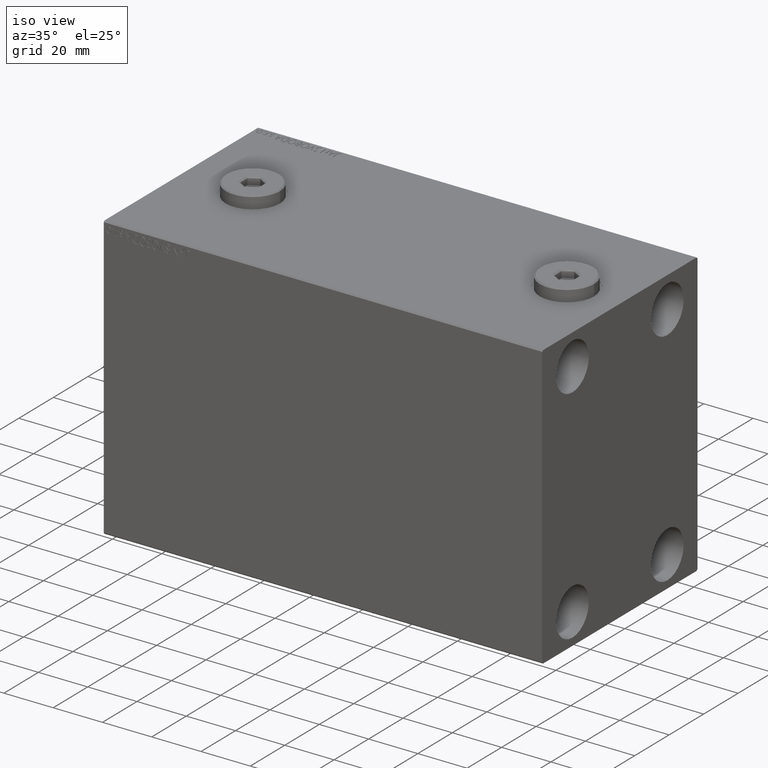
[diagram: clean part render]
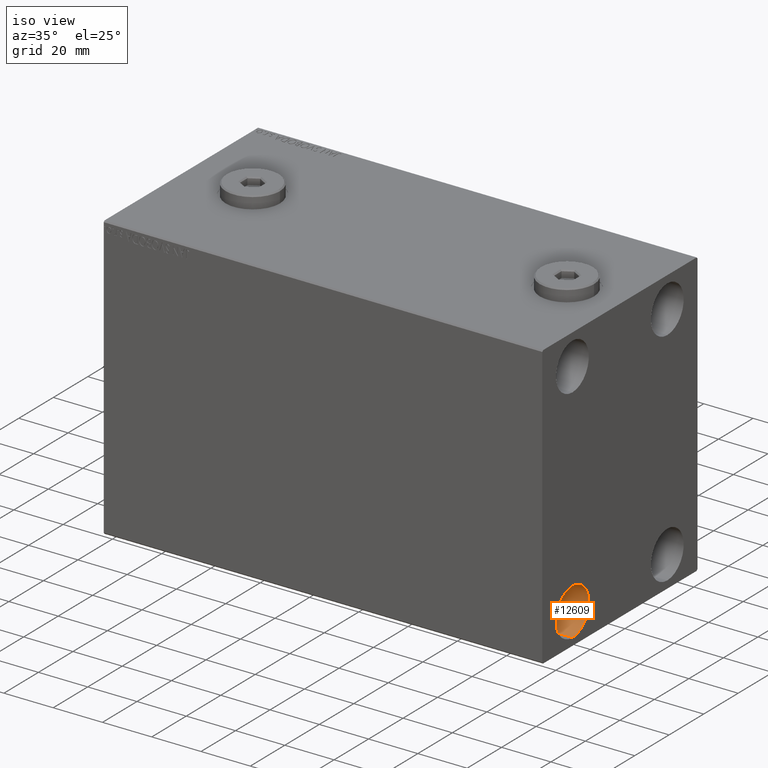
[diagram: same view with one face highlighted and labeled with its STEP entity id]
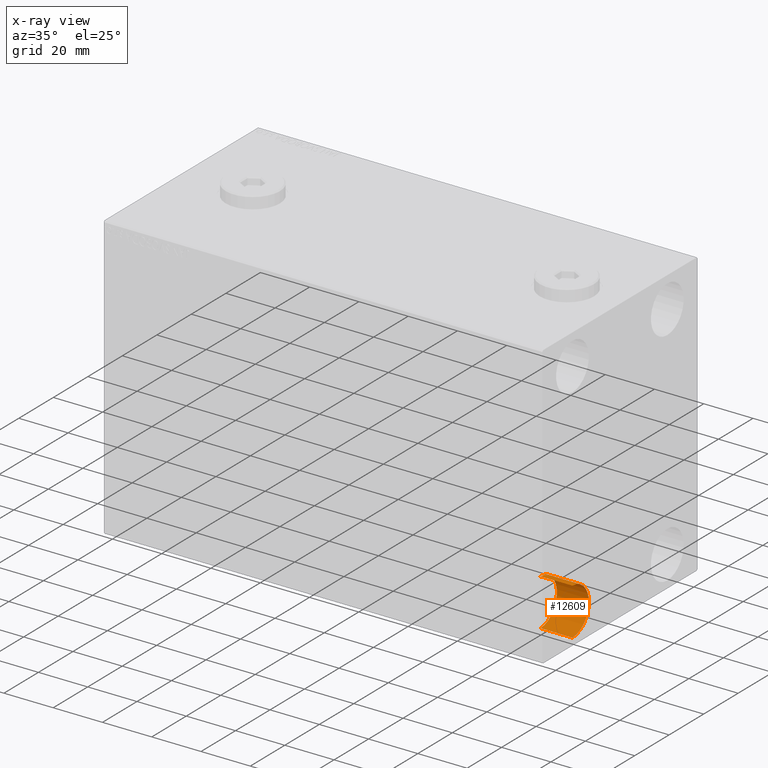
[diagram: x-ray of the same camera — body ghosted, the highlighted face saturated]
A machine part, iso view. The second image highlights one B-rep face of the part: STEP entity #12609.
The next image is the same camera in x-ray: the body ghosted, the highlighted face saturated — about 0% of this face is hidden behind the body in this view.
In plain terms, the highlighted cylindrical surface (edge-blend (fillet) strip) has radius 9.5 mm, axis along (1, 0, 0).
Its self-contained STEP definition (entity closure, byte-faithful):
#299 = ORIENTED_EDGE ( 'NONE', *, *, #2858, .F. ) ;
#2177 = CARTESIAN_POINT ( 'NONE',  ( 164.9999999999999716, -27.50000000000000000, -35.49999999999998579 ) ) ;
#2459 = CARTESIAN_POINT ( 'NONE',  ( 178.0000000000000000, -27.50000000000000000, -54.49999999999998579 ) ) ;
#2858 = EDGE_CURVE ( 'NONE', #34125, #22466, #41378, .T. ) ;
#3218 = DIRECTION ( 'NONE',  ( 1.000000000000000000, -0.000000000000000000, -0.000000000000000000 ) ) ;
#5122 = CIRCLE ( 'NONE', #39551, 9.500000000000001776 ) ;
#5836 = CARTESIAN_POINT ( 'NONE',  ( 164.9999999999999716, -27.50000000000000000, -54.49999999999998579 ) ) ;
#6873 = VECTOR ( 'NONE', #35252, 1000.000000000000000 ) ;
#7261 = CARTESIAN_POINT ( 'NONE',  ( 164.9999999999999716, -27.50000000000000000, -54.49999999999998579 ) ) ;
#8541 = VERTEX_POINT ( 'NONE', #2177 ) ;
#9485 = DIRECTION ( 'NONE',  ( 0.000000000000000000, 0.000000000000000000, 1.000000000000000000 ) ) ;
#9492 = ORIENTED_EDGE ( 'NONE', *, *, #29332, .T. ) ;
#10084 = LINE ( 'NONE', #24541, #34249 ) ;
#12040 = CARTESIAN_POINT ( 'NONE',  ( 164.9999999999999716, -27.50000000000000000, -44.99999999999998579 ) ) ;
#12609 = ADVANCED_FACE ( 'NONE', ( #29498 ), #43451, .F. ) ;
#12708 = DIRECTION ( 'NONE',  ( 1.000000000000000000, -0.000000000000000000, -0.000000000000000000 ) ) ;
#14416 = EDGE_CURVE ( 'NONE', #8541, #34125, #10084, .T. ) ;
#16350 = CARTESIAN_POINT ( 'NONE',  ( 178.0000000000000000, -27.50000000000000000, -44.99999999999998579 ) ) ;
#16940 = VERTEX_POINT ( 'NONE', #5836 ) ;
#19148 = DIRECTION ( 'NONE',  ( 0.000000000000000000, 0.000000000000000000, -1.000000000000000000 ) ) ;
#21611 = AXIS2_PLACEMENT_3D ( 'NONE', #16350, #23471, #9485 ) ;
#22364 = CARTESIAN_POINT ( 'NONE',  ( 164.9999999999999716, -27.50000000000000000, -44.99999999999998579 ) ) ;
#22466 = VERTEX_POINT ( 'NONE', #2459 ) ;
#23471 = DIRECTION ( 'NONE',  ( -1.000000000000000000, -0.000000000000000000, -0.000000000000000000 ) ) ;
#24541 = CARTESIAN_POINT ( 'NONE',  ( 164.9999999999999716, -27.50000000000000000, -35.49999999999998579 ) ) ;
#29332 = EDGE_CURVE ( 'NONE', #8541, #16940, #5122, .T. ) ;
#29498 = FACE_OUTER_BOUND ( 'NONE', #31598, .T. ) ;
#30559 = AXIS2_PLACEMENT_3D ( 'NONE', #12040, #12708, #19148 ) ;
#31598 = EDGE_LOOP ( 'NONE', ( #40403, #9492, #32257, #299 ) ) ;
#31856 = CARTESIAN_POINT ( 'NONE',  ( 178.0000000000000000, -27.50000000000000000, -35.49999999999998579 ) ) ;
#32257 = ORIENTED_EDGE ( 'NONE', *, *, #44428, .T. ) ;
#34125 = VERTEX_POINT ( 'NONE', #31856 ) ;
#34249 = VECTOR ( 'NONE', #3218, 1000.000000000000000 ) ;
#35252 = DIRECTION ( 'NONE',  ( 1.000000000000000000, -0.000000000000000000, -0.000000000000000000 ) ) ;
#35920 = DIRECTION ( 'NONE',  ( -1.000000000000000000, -0.000000000000000000, -0.000000000000000000 ) ) ;
#36373 = DIRECTION ( 'NONE',  ( 0.000000000000000000, 0.000000000000000000, 1.000000000000000000 ) ) ;
#38673 = LINE ( 'NONE', #7261, #6873 ) ;
#39551 = AXIS2_PLACEMENT_3D ( 'NONE', #22364, #35920, #36373 ) ;
#40403 = ORIENTED_EDGE ( 'NONE', *, *, #14416, .F. ) ;
#41378 = CIRCLE ( 'NONE', #21611, 9.500000000000001776 ) ;
#43451 = CYLINDRICAL_SURFACE ( 'NONE', #30559, 9.500000000000001776 ) ;
#44428 = EDGE_CURVE ( 'NONE', #16940, #22466, #38673, .T. ) ;